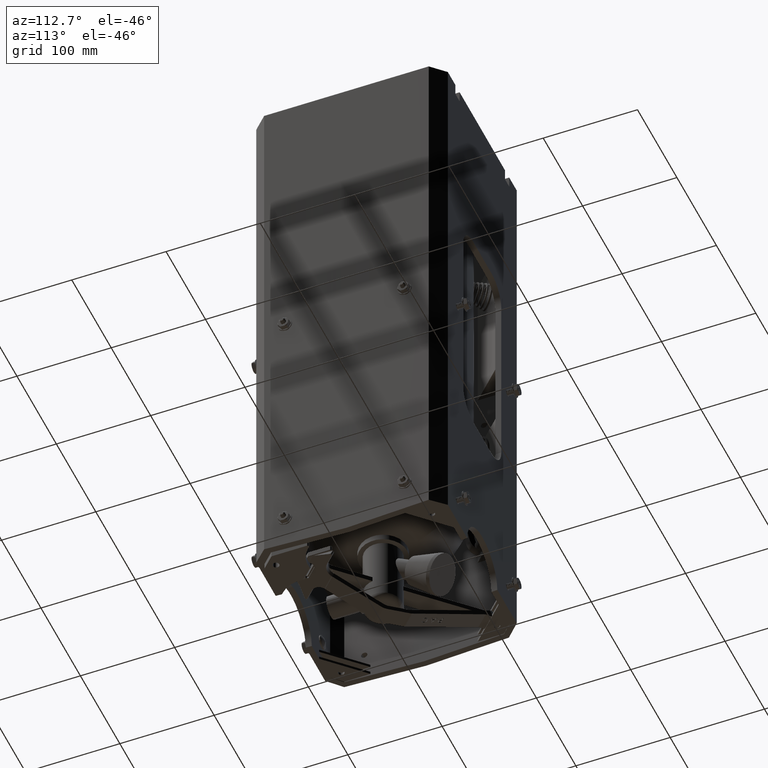
[diagram: clean part render]
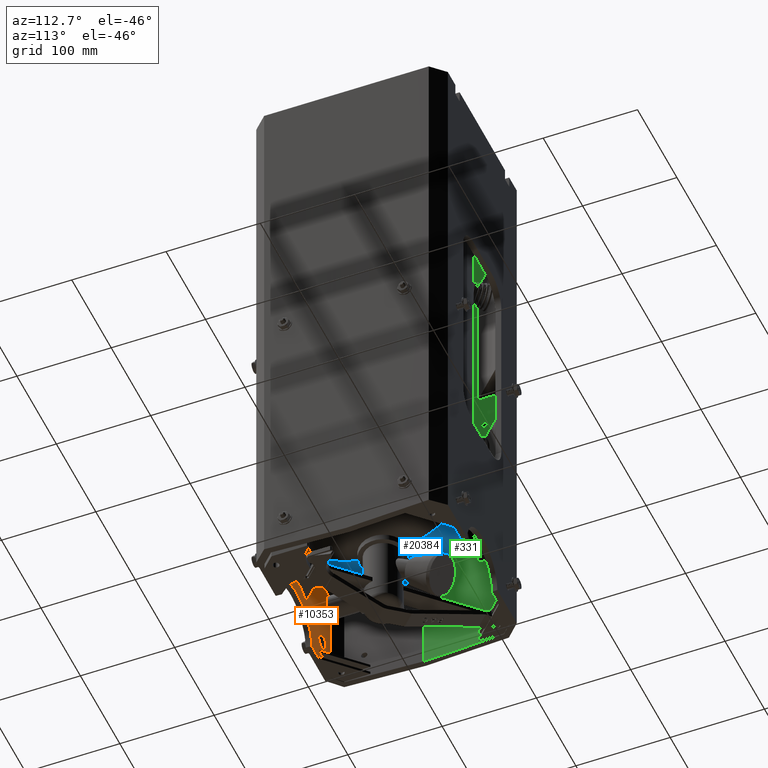
[diagram: same view with three faces highlighted in distinct colors, each labeled with its STEP entity id]
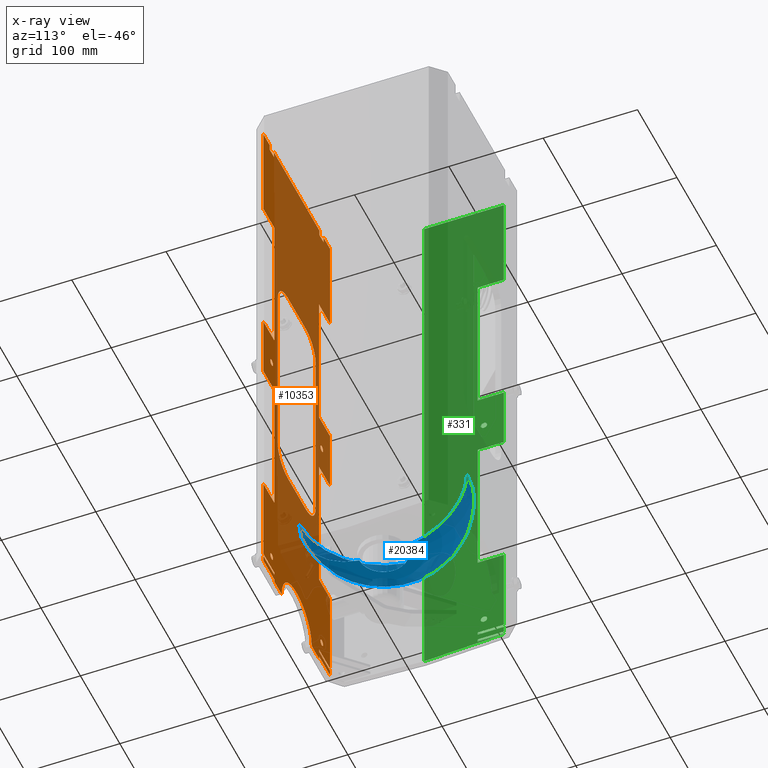
[diagram: x-ray of the same camera — body ghosted, the three highlighted faces saturated]
A machine part, auxiliary view with three faces highlighted in distinct colors.
The next image is the same camera in x-ray (body ghosted, the three faces saturated) — at least one of them is partly hidden behind the body in this view.
Their STEP definitions:

[orange] entity #10353 — the highlighted planar face has unit normal (0, 1, 0).
#27 = CARTESIAN_POINT ( 'NONE',  ( -3.333946609406732300, -3.750000000000011100, -7.533124999999999200 ) ) ;
#78 = DIRECTION ( 'NONE',  ( 4.440892098500599000E-016, 1.000000000000000000, 0.0000000000000000000 ) ) ;
#100 = CARTESIAN_POINT ( 'NONE',  ( -3.333946609406732300, -3.750000000000011100, 12.10500000000000000 ) ) ;
#123 = LINE ( 'NONE', #27, #24788 ) ;
#145 = CARTESIAN_POINT ( 'NONE',  ( -4.000000000000006200, -3.750000000000011100, 5.104999999999997800 ) ) ;
#148 = CARTESIAN_POINT ( 'NONE',  ( 2.240846073967598200, -3.750000000000008900, -11.79112499999999900 ) ) ;
#194 = DIRECTION ( 'NONE',  ( 0.0000000000000000000, 0.0000000000000000000, 1.000000000000000000 ) ) ;
#207 = CARTESIAN_POINT ( 'NONE',  ( -3.333946609406732300, -3.750000000000011100, -11.79112499999999900 ) ) ;
#210 = CARTESIAN_POINT ( 'NONE',  ( 2.240846073967598200, -3.750000000000008900, -1.283124999999999200 ) ) ;
#292 = LINE ( 'NONE', #22726, #1045 ) ;
#296 = VERTEX_POINT ( 'NONE', #26378 ) ;
#344 = VERTEX_POINT ( 'NONE', #19161 ) ;
#410 = CARTESIAN_POINT ( 'NONE',  ( -2.240846073967608800, -3.750000000000008900, -11.79112499999999900 ) ) ;
#455 = CARTESIAN_POINT ( 'NONE',  ( 2.263500000000002300, -3.750000000000008900, 11.85499999999999900 ) ) ;
#488 = VERTEX_POINT ( 'NONE', #4261 ) ;
#721 = DIRECTION ( 'NONE',  ( 0.0000000000000000000, -0.0000000000000000000, 1.000000000000000000 ) ) ;
#768 = VERTEX_POINT ( 'NONE', #14245 ) ;
#959 = VERTEX_POINT ( 'NONE', #19803 ) ;
#1045 = VECTOR ( 'NONE', #5640, 39.37007874015748100 ) ;
#1080 = CIRCLE ( 'NONE', #10067, 0.1329999999999999200 ) ;
#1216 = VECTOR ( 'NONE', #10604, 39.37007874015748100 ) ;
#1257 = LINE ( 'NONE', #6743, #13168 ) ;
#1462 = CARTESIAN_POINT ( 'NONE',  ( 3.333946609406724700, -3.750000000000006700, 12.10500000000000000 ) ) ;
#1553 = CARTESIAN_POINT ( 'NONE',  ( -2.240846073967608800, -3.750000000000008900, -11.90812500000000000 ) ) ;
#1576 = VERTEX_POINT ( 'NONE', #27826 ) ;
#1688 = CIRCLE ( 'NONE', #17645, 1.000000000000000200 ) ;
#1798 = ORIENTED_EDGE ( 'NONE', *, *, #1900, .T. ) ;
#1880 = DIRECTION ( 'NONE',  ( 2.048885995248202300E-016, 9.098881627026276300E-032, 1.000000000000000000 ) ) ;
#1900 = EDGE_CURVE ( 'NONE', #11920, #9295, #3415, .T. ) ;
#1964 = EDGE_CURVE ( 'NONE', #19873, #10796, #2673, .T. ) ;
#1969 = VECTOR ( 'NONE', #5294, 39.37007874015748100 ) ;
#2036 = EDGE_CURVE ( 'NONE', #15999, #13564, #7482, .T. ) ;
#2039 = ORIENTED_EDGE ( 'NONE', *, *, #21337, .F. ) ;
#2093 = EDGE_CURVE ( 'NONE', #18525, #3503, #13842, .T. ) ;
#2113 = CARTESIAN_POINT ( 'NONE',  ( -2.500000000000004900, -3.750000000000008900, -10.77000000000000100 ) ) ;
#2155 = ORIENTED_EDGE ( 'NONE', *, *, #2036, .T. ) ;
#2158 = VECTOR ( 'NONE', #9188, 39.37007874015748100 ) ;
#2354 = DIRECTION ( 'NONE',  ( 1.000000000000000000, 4.440892098500596600E-016, 0.0000000000000000000 ) ) ;
#2366 = VECTOR ( 'NONE', #16147, 39.37007874015748100 ) ;
#2460 = DIRECTION ( 'NONE',  ( 4.440892098500599000E-016, 1.000000000000000000, 0.0000000000000000000 ) ) ;
#2493 = LINE ( 'NONE', #17552, #20751 ) ;
#2612 = EDGE_LOOP ( 'NONE', ( #8525, #13953 ) ) ;
#2620 = EDGE_CURVE ( 'NONE', #21603, #344, #20890, .T. ) ;
#2628 = DIRECTION ( 'NONE',  ( 0.0000000000000000000, -0.0000000000000000000, 1.000000000000000000 ) ) ;
#2673 = LINE ( 'NONE', #7019, #8233 ) ;
#2924 = FACE_BOUND ( 'NONE', #17489, .T. ) ;
#3098 = ORIENTED_EDGE ( 'NONE', *, *, #6516, .F. ) ;
#3136 = DIRECTION ( 'NONE',  ( 4.440892098500599000E-016, 1.000000000000000000, 0.0000000000000000000 ) ) ;
#3182 = CARTESIAN_POINT ( 'NONE',  ( 2.240846073967598200, -3.750000000000008900, -11.90812500000000000 ) ) ;
#3285 = DIRECTION ( 'NONE',  ( 5.463695987328539300E-016, 2.426368433873675200E-031, -1.000000000000000000 ) ) ;
#3290 = VERTEX_POINT ( 'NONE', #14033 ) ;
#3292 = DIRECTION ( 'NONE',  ( -0.0000000000000000000, -0.0000000000000000000, 1.000000000000000000 ) ) ;
#3388 = ORIENTED_EDGE ( 'NONE', *, *, #9419, .F. ) ;
#3389 = CARTESIAN_POINT ( 'NONE',  ( 1.895000000000002200, -3.750000000000006700, 4.105000000000000400 ) ) ;
#3410 = CARTESIAN_POINT ( 'NONE',  ( 3.333946609406724700, -3.750000000000006700, -11.79112499999999900 ) ) ;
#3415 = LINE ( 'NONE', #18086, #8989 ) ;
#3503 = VERTEX_POINT ( 'NONE', #17426 ) ;
#3516 = AXIS2_PLACEMENT_3D ( 'NONE', #25298, #10967, #27711 ) ;
#3546 = CARTESIAN_POINT ( 'NONE',  ( 2.240846073967598200, -3.750000000000008900, -7.533124999999999200 ) ) ;
#3727 = CARTESIAN_POINT ( 'NONE',  ( -3.333946609406732300, -3.750000000000011100, -11.40812500000000400 ) ) ;
#3867 = EDGE_CURVE ( 'NONE', #3290, #28317, #21169, .T. ) ;
#3882 = ORIENTED_EDGE ( 'NONE', *, *, #24211, .T. ) ;
#4090 = CARTESIAN_POINT ( 'NONE',  ( 2.500000000000004000, -3.750000000000008900, -0.02000000000000033300 ) ) ;
#4114 = VECTOR ( 'NONE', #25039, 39.37007874015748100 ) ;
#4196 = CARTESIAN_POINT ( 'NONE',  ( 2.500000000000004400, -3.750000000000008900, -10.63700000000000000 ) ) ;
#4261 = CARTESIAN_POINT ( 'NONE',  ( -2.500000000000004400, -3.750000000000008900, -10.90300000000000000 ) ) ;
#4347 = VECTOR ( 'NONE', #28700, 39.37007874015748100 ) ;
#4376 = CARTESIAN_POINT ( 'NONE',  ( 2.263500000000002700, -3.750000000000008900, 11.60500000000000000 ) ) ;
#4496 = DIRECTION ( 'NONE',  ( 0.0000000000000000000, 0.0000000000000000000, 1.000000000000000000 ) ) ;
#4516 = DIRECTION ( 'NONE',  ( 1.000000000000000000, 4.440892098500596600E-016, 0.0000000000000000000 ) ) ;
#4622 = LINE ( 'NONE', #20877, #17290 ) ;
#4627 = CARTESIAN_POINT ( 'NONE',  ( -3.333946609406732300, -3.750000000000011500, 7.716875000000000800 ) ) ;
#4643 = DIRECTION ( 'NONE',  ( 4.440892098500599000E-016, 1.000000000000000000, 0.0000000000000000000 ) ) ;
#4761 = EDGE_CURVE ( 'NONE', #13798, #959, #8431, .T. ) ;
#4885 = CIRCLE ( 'NONE', #11754, 1.000000000000000200 ) ;
#4982 = VERTEX_POINT ( 'NONE', #18050 ) ;
#5016 = LINE ( 'NONE', #13231, #24074 ) ;
#5024 = EDGE_CURVE ( 'NONE', #18229, #16524, #15879, .T. ) ;
#5078 = LINE ( 'NONE', #100, #4347 ) ;
#5210 = ORIENTED_EDGE ( 'NONE', *, *, #29570, .T. ) ;
#5289 = EDGE_CURVE ( 'NONE', #23708, #11648, #27482, .T. ) ;
#5294 = DIRECTION ( 'NONE',  ( 1.000000000000000000, 4.440892098500596600E-016, 0.0000000000000000000 ) ) ;
#5463 = ORIENTED_EDGE ( 'NONE', *, *, #18894, .F. ) ;
#5501 = CARTESIAN_POINT ( 'NONE',  ( -3.333946609406732300, -3.750000000000011100, -11.40812500000000200 ) ) ;
#5640 = DIRECTION ( 'NONE',  ( 1.000000000000000000, 4.440892098500596600E-016, 0.0000000000000000000 ) ) ;
#5660 = CARTESIAN_POINT ( 'NONE',  ( 2.263500000000002300, -3.750000000000008900, 12.10500000000000000 ) ) ;
#5802 = DIRECTION ( 'NONE',  ( 1.000000000000000000, 4.440892098500596600E-016, 0.0000000000000000000 ) ) ;
#5887 = CARTESIAN_POINT ( 'NONE',  ( -2.500000000000004400, -3.750000000000008900, 0.1129999999999993800 ) ) ;
#5944 = CARTESIAN_POINT ( 'NONE',  ( -2.240846073967608800, -3.750000000000009300, 7.716875000000000800 ) ) ;
#5977 = EDGE_CURVE ( 'NONE', #30487, #16671, #20318, .T. ) ;
#6052 = ORIENTED_EDGE ( 'NONE', *, *, #27390, .F. ) ;
#6183 = PLANE ( 'NONE',  #3516 ) ;
#6361 = CARTESIAN_POINT ( 'NONE',  ( -4.000000000000010700, -3.750000000000011100, -11.90812500000000000 ) ) ;
#6425 = ORIENTED_EDGE ( 'NONE', *, *, #15903, .F. ) ;
#6480 = DIRECTION ( 'NONE',  ( 4.440892098500599000E-016, 1.000000000000000000, 0.0000000000000000000 ) ) ;
#6481 = DIRECTION ( 'NONE',  ( 0.0000000000000000000, 0.0000000000000000000, 1.000000000000000000 ) ) ;
#6516 = EDGE_CURVE ( 'NONE', #30647, #9044, #5016, .T. ) ;
#6567 = CARTESIAN_POINT ( 'NONE',  ( 2.500000000000004400, -3.750000000000008900, -0.1530000000000000500 ) ) ;
#6568 = DIRECTION ( 'NONE',  ( 4.440892098500599000E-016, 1.000000000000000000, 0.0000000000000000000 ) ) ;
#6596 = DIRECTION ( 'NONE',  ( 0.0000000000000000000, 0.0000000000000000000, -1.000000000000000000 ) ) ;
#6667 = LINE ( 'NONE', #5501, #24978 ) ;
#6694 = VECTOR ( 'NONE', #29269, 39.37007874015748100 ) ;
#6735 = EDGE_CURVE ( 'NONE', #19331, #4982, #20292, .T. ) ;
#6743 = CARTESIAN_POINT ( 'NONE',  ( -4.000000000000010700, -3.750000000000011100, -4.894999999999998700 ) ) ;
#6779 = CARTESIAN_POINT ( 'NONE',  ( -3.333946609406732300, -3.750000000000011500, 1.466875000000000800 ) ) ;
#7004 = AXIS2_PLACEMENT_3D ( 'NONE', #4090, #20762, #6481 ) ;
#7019 = CARTESIAN_POINT ( 'NONE',  ( 3.333946609406724700, -3.750000000000006700, 12.10500000000000000 ) ) ;
#7094 = ORIENTED_EDGE ( 'NONE', *, *, #12353, .F. ) ;
#7217 = LINE ( 'NONE', #4627, #19917 ) ;
#7323 = VERTEX_POINT ( 'NONE', #11101 ) ;
#7421 = EDGE_CURVE ( 'NONE', #18966, #25022, #1257, .T. ) ;
#7482 = LINE ( 'NONE', #11502, #13067 ) ;
#7552 = ORIENTED_EDGE ( 'NONE', *, *, #14139, .F. ) ;
#7579 = ORIENTED_EDGE ( 'NONE', *, *, #29607, .F. ) ;
#7582 = ORIENTED_EDGE ( 'NONE', *, *, #21522, .F. ) ;
#7751 = FACE_OUTER_BOUND ( 'NONE', #16873, .T. ) ;
#7782 = CARTESIAN_POINT ( 'NONE',  ( -2.240846073967608800, -3.750000000000008400, -11.40812500000000200 ) ) ;
#7858 = CARTESIAN_POINT ( 'NONE',  ( 2.240846073967598200, -3.750000000000008900, -11.79112499999999900 ) ) ;
#7908 = VERTEX_POINT ( 'NONE', #3410 ) ;
#8041 = CIRCLE ( 'NONE', #19220, 0.1329999999999997000 ) ;
#8141 = VERTEX_POINT ( 'NONE', #23092 ) ;
#8151 = CARTESIAN_POINT ( 'NONE',  ( -1.895000000000009100, -3.750000000000008900, -3.894999999999997800 ) ) ;
#8229 = VERTEX_POINT ( 'NONE', #18610 ) ;
#8233 = VECTOR ( 'NONE', #27506, 39.37007874015748100 ) ;
#8312 = CARTESIAN_POINT ( 'NONE',  ( -2.240846073967608800, -3.750000000000008900, -1.283124999999999200 ) ) ;
#8431 = LINE ( 'NONE', #22276, #24526 ) ;
#8477 = FACE_BOUND ( 'NONE', #30136, .T. ) ;
#8503 = ORIENTED_EDGE ( 'NONE', *, *, #17524, .F. ) ;
#8525 = ORIENTED_EDGE ( 'NONE', *, *, #27782, .F. ) ;
#8587 = EDGE_CURVE ( 'NONE', #11648, #28017, #13030, .T. ) ;
#8679 = VERTEX_POINT ( 'NONE', #29566 ) ;
#8843 = EDGE_CURVE ( 'NONE', #8229, #13113, #9309, .T. ) ;
#8960 = CARTESIAN_POINT ( 'NONE',  ( -1.895000000000005800, -3.750000000000008900, 12.10500000000000000 ) ) ;
#8989 = VECTOR ( 'NONE', #18188, 39.37007874015748100 ) ;
#9044 = VERTEX_POINT ( 'NONE', #30910 ) ;
#9059 = CARTESIAN_POINT ( 'NONE',  ( 3.333946609406724700, -3.750000000000006700, 11.85499999999999900 ) ) ;
#9072 = AXIS2_PLACEMENT_3D ( 'NONE', #10452, #27172, #12845 ) ;
#9112 = ORIENTED_EDGE ( 'NONE', *, *, #26189, .F. ) ;
#9145 = ORIENTED_EDGE ( 'NONE', *, *, #11028, .F. ) ;
#9188 = DIRECTION ( 'NONE',  ( 1.000000000000000000, 4.440892098500596600E-016, 0.0000000000000000000 ) ) ;
#9255 = ORIENTED_EDGE ( 'NONE', *, *, #15683, .T. ) ;
#9295 = VERTEX_POINT ( 'NONE', #19504 ) ;
#9309 = LINE ( 'NONE', #6361, #10049 ) ;
#9331 = DIRECTION ( 'NONE',  ( 4.440892098500599000E-016, 1.000000000000000000, 0.0000000000000000000 ) ) ;
#9390 = EDGE_CURVE ( 'NONE', #8679, #17498, #1080, .T. ) ;
#9419 = EDGE_CURVE ( 'NONE', #24800, #1576, #6667, .T. ) ;
#9535 = CARTESIAN_POINT ( 'NONE',  ( 0.8949999999999924700, -3.750000000000006700, -4.894999999999997800 ) ) ;
#9585 = CIRCLE ( 'NONE', #16177, 0.1329999999999999200 ) ;
#9632 = LINE ( 'NONE', #14811, #15960 ) ;
#9653 = CARTESIAN_POINT ( 'NONE',  ( -3.333946609406732300, -3.750000000000011100, 11.85499999999999900 ) ) ;
#9678 = DIRECTION ( 'NONE',  ( 1.000000000000000000, 4.440892098500596600E-016, 0.0000000000000000000 ) ) ;
#9760 = CARTESIAN_POINT ( 'NONE',  ( 2.240846073967598600, -3.750000000000008900, -11.40812500000000200 ) ) ;
#9768 = VECTOR ( 'NONE', #26356, 39.37007874015748100 ) ;
#9962 = ORIENTED_EDGE ( 'NONE', *, *, #30964, .T. ) ;
#10003 = ORIENTED_EDGE ( 'NONE', *, *, #21233, .T. ) ;
#10016 = CARTESIAN_POINT ( 'NONE',  ( -3.333946609406732300, -3.750000000000011100, -11.79112499999999900 ) ) ;
#10019 = DIRECTION ( 'NONE',  ( 0.0000000000000000000, 0.0000000000000000000, -1.000000000000000000 ) ) ;
#10049 = VECTOR ( 'NONE', #30181, 39.37007874015748100 ) ;
#10067 = AXIS2_PLACEMENT_3D ( 'NONE', #17383, #3136, #19815 ) ;
#10089 = CIRCLE ( 'NONE', #17550, 1.500000000000000900 ) ;
#10156 = ORIENTED_EDGE ( 'NONE', *, *, #27112, .F. ) ;
#10220 = VERTEX_POINT ( 'NONE', #15153 ) ;
#10353 = ADVANCED_FACE ( 'NONE', ( #20421, #8477, #2924, #26818, #14089, #7751 ), #6183, .T. ) ;
#10444 = LINE ( 'NONE', #22204, #23154 ) ;
#10452 = CARTESIAN_POINT ( 'NONE',  ( 2.500000000000003600, -3.750000000000008900, -10.77000000000000100 ) ) ;
#10498 = LINE ( 'NONE', #145, #9768 ) ;
#10512 = ORIENTED_EDGE ( 'NONE', *, *, #3867, .T. ) ;
#10521 = VERTEX_POINT ( 'NONE', #16198 ) ;
#10528 = VECTOR ( 'NONE', #28111, 39.37007874015748100 ) ;
#10604 = DIRECTION ( 'NONE',  ( 0.0000000000000000000, 0.0000000000000000000, -1.000000000000000000 ) ) ;
#10796 = VERTEX_POINT ( 'NONE', #26659 ) ;
#10819 = CARTESIAN_POINT ( 'NONE',  ( -3.333946609406732300, -3.750000000000011100, -1.283124999999999200 ) ) ;
#10912 = LINE ( 'NONE', #9760, #25136 ) ;
#10967 = DIRECTION ( 'NONE',  ( 4.440892098500599000E-016, 1.000000000000000000, 0.0000000000000000000 ) ) ;
#11028 = EDGE_CURVE ( 'NONE', #10220, #28317, #13292, .T. ) ;
#11101 = CARTESIAN_POINT ( 'NONE',  ( -2.240846073967608800, -3.750000000000008900, -7.533124999999999200 ) ) ;
#11159 = VECTOR ( 'NONE', #28274, 39.37007874015748100 ) ;
#11269 = VERTEX_POINT ( 'NONE', #6567 ) ;
#11310 = ORIENTED_EDGE ( 'NONE', *, *, #8843, .F. ) ;
#11380 = CARTESIAN_POINT ( 'NONE',  ( 2.240846073967597700, -3.750000000000009300, 1.466875000000000800 ) ) ;
#11413 = VECTOR ( 'NONE', #25085, 39.37007874015748100 ) ;
#11502 = CARTESIAN_POINT ( 'NONE',  ( -4.000000000000010700, -3.750000000000011100, 11.85499999999999900 ) ) ;
#11529 = EDGE_CURVE ( 'NONE', #24358, #24800, #5078, .T. ) ;
#11535 = DIRECTION ( 'NONE',  ( -1.000000000000000000, -4.440892098500596600E-016, 0.0000000000000000000 ) ) ;
#11608 = VECTOR ( 'NONE', #12747, 39.37007874015748100 ) ;
#11628 = CARTESIAN_POINT ( 'NONE',  ( -1.499942577025875900, -3.750000000000011100, -11.90812500000000000 ) ) ;
#11633 = ORIENTED_EDGE ( 'NONE', *, *, #13763, .T. ) ;
#11648 = VERTEX_POINT ( 'NONE', #410 ) ;
#11668 = DIRECTION ( 'NONE',  ( 0.0000000000000000000, 0.0000000000000000000, -1.000000000000000000 ) ) ;
#11725 = CARTESIAN_POINT ( 'NONE',  ( 2.240846073967598600, -3.750000000000008900, -11.40812500000000400 ) ) ;
#11754 = AXIS2_PLACEMENT_3D ( 'NONE', #14348, #78, #16735 ) ;
#11781 = CARTESIAN_POINT ( 'NONE',  ( -2.687500000000006700, -3.750000000000008900, 11.85499999999999900 ) ) ;
#11828 = VERTEX_POINT ( 'NONE', #3546 ) ;
#11920 = VERTEX_POINT ( 'NONE', #13207 ) ;
#11938 = CARTESIAN_POINT ( 'NONE',  ( 2.240846073967597700, -3.750000000000009300, 1.466875000000000800 ) ) ;
#12059 = DIRECTION ( 'NONE',  ( 4.440892098500599000E-016, 1.000000000000000000, 0.0000000000000000000 ) ) ;
#12076 = CARTESIAN_POINT ( 'NONE',  ( -4.000000000000010700, -3.750000000000011100, -11.90812500000000000 ) ) ;
#12163 = CARTESIAN_POINT ( 'NONE',  ( -2.500000000000004400, -3.750000000000008900, -10.63700000000000000 ) ) ;
#12256 = VERTEX_POINT ( 'NONE', #11938 ) ;
#12353 = EDGE_CURVE ( 'NONE', #18929, #19873, #10912, .T. ) ;
#12454 = CARTESIAN_POINT ( 'NONE',  ( -2.263500000000007200, -3.750000000000008900, 12.10500000000000000 ) ) ;
#12519 = CARTESIAN_POINT ( 'NONE',  ( -2.240846073967608800, -3.750000000000008400, -11.40812500000000200 ) ) ;
#12586 = CIRCLE ( 'NONE', #17369, 0.1329999999999997300 ) ;
#12707 = VECTOR ( 'NONE', #19015, 39.37007874015748100 ) ;
#12716 = DIRECTION ( 'NONE',  ( 4.440892098500599000E-016, 1.000000000000000000, 0.0000000000000000000 ) ) ;
#12747 = DIRECTION ( 'NONE',  ( 1.000000000000000000, 4.440892098500596600E-016, 0.0000000000000000000 ) ) ;
#12779 = DIRECTION ( 'NONE',  ( 0.0000000000000000000, 0.0000000000000000000, -1.000000000000000000 ) ) ;
#12784 = EDGE_CURVE ( 'NONE', #12256, #16524, #16866, .T. ) ;
#12845 = DIRECTION ( 'NONE',  ( 0.0000000000000000000, 0.0000000000000000000, 1.000000000000000000 ) ) ;
#13030 = LINE ( 'NONE', #12519, #6694 ) ;
#13067 = VECTOR ( 'NONE', #2354, 39.37007874015748100 ) ;
#13113 = VERTEX_POINT ( 'NONE', #3182 ) ;
#13168 = VECTOR ( 'NONE', #11535, 39.37007874015748100 ) ;
#13207 = CARTESIAN_POINT ( 'NONE',  ( 2.240846073967598600, -3.750000000000008900, -11.52512499999999900 ) ) ;
#13231 = CARTESIAN_POINT ( 'NONE',  ( 2.240846073967597700, -3.750000000000009300, 7.716875000000000800 ) ) ;
#13292 = LINE ( 'NONE', #5944, #26029 ) ;
#13379 = CARTESIAN_POINT ( 'NONE',  ( 3.333946609406724700, -3.750000000000007100, 1.466875000000000800 ) ) ;
#13455 = EDGE_CURVE ( 'NONE', #26520, #21782, #10498, .T. ) ;
#13564 = VERTEX_POINT ( 'NONE', #455 ) ;
#13724 = ORIENTED_EDGE ( 'NONE', *, *, #5977, .F. ) ;
#13745 = EDGE_CURVE ( 'NONE', #11828, #10796, #24334, .T. ) ;
#13750 = CARTESIAN_POINT ( 'NONE',  ( 2.240846073967598600, -3.750000000000008900, -11.40812500000000200 ) ) ;
#13763 = EDGE_CURVE ( 'NONE', #13564, #768, #30698, .T. ) ;
#13767 = AXIS2_PLACEMENT_3D ( 'NONE', #19566, #2460, #16695 ) ;
#13774 = VERTEX_POINT ( 'NONE', #24785 ) ;
#13798 = VERTEX_POINT ( 'NONE', #3389 ) ;
#13842 = CIRCLE ( 'NONE', #13767, 0.1329999999999997000 ) ;
#13953 = ORIENTED_EDGE ( 'NONE', *, *, #2093, .F. ) ;
#14033 = CARTESIAN_POINT ( 'NONE',  ( -3.333946609406732300, -3.750000000000011100, 1.466875000000001900 ) ) ;
#14089 = FACE_BOUND ( 'NONE', #28323, .T. ) ;
#14139 = EDGE_CURVE ( 'NONE', #22069, #488, #29550, .T. ) ;
#14245 = CARTESIAN_POINT ( 'NONE',  ( 2.263500000000002700, -3.750000000000008900, 11.60500000000000000 ) ) ;
#14270 = CARTESIAN_POINT ( 'NONE',  ( -3.333946609406732300, -3.750000000000011100, -7.533124999999999200 ) ) ;
#14283 = LINE ( 'NONE', #25779, #15759 ) ;
#14348 = CARTESIAN_POINT ( 'NONE',  ( 0.8949999999999993500, -3.750000000000008900, 4.105000000000000400 ) ) ;
#14351 = CARTESIAN_POINT ( 'NONE',  ( -2.263500000000007200, -3.750000000000008900, 11.85499999999999900 ) ) ;
#14462 = DIRECTION ( 'NONE',  ( 4.440892098500599000E-016, 1.000000000000000000, 0.0000000000000000000 ) ) ;
#14479 = ORIENTED_EDGE ( 'NONE', *, *, #18364, .F. ) ;
#14521 = VECTOR ( 'NONE', #9678, 39.37007874015748100 ) ;
#14580 = CARTESIAN_POINT ( 'NONE',  ( -2.240846073967609700, -3.750000000000008900, 1.466875000000001300 ) ) ;
#14631 = LINE ( 'NONE', #26714, #1969 ) ;
#14642 = LINE ( 'NONE', #29536, #20985 ) ;
#14753 = VECTOR ( 'NONE', #26101, 39.37007874015748100 ) ;
#14811 = CARTESIAN_POINT ( 'NONE',  ( 2.240846073967598200, -3.750000000000008900, -1.283124999999999200 ) ) ;
#14951 = AXIS2_PLACEMENT_3D ( 'NONE', #26387, #12059, #28780 ) ;
#15016 = VERTEX_POINT ( 'NONE', #9059 ) ;
#15017 = EDGE_CURVE ( 'NONE', #25425, #13113, #25448, .T. ) ;
#15074 = DIRECTION ( 'NONE',  ( 0.0000000000000000000, 0.0000000000000000000, -1.000000000000000000 ) ) ;
#15153 = CARTESIAN_POINT ( 'NONE',  ( -2.240846073967609700, -3.750000000000008900, 7.716875000000000800 ) ) ;
#15162 = EDGE_CURVE ( 'NONE', #21782, #13798, #4885, .T. ) ;
#15185 = EDGE_CURVE ( 'NONE', #25022, #19331, #16812, .T. ) ;
#15430 = LINE ( 'NONE', #12454, #27418 ) ;
#15525 = EDGE_CURVE ( 'NONE', #25071, #8229, #10089, .T. ) ;
#15683 = EDGE_CURVE ( 'NONE', #23708, #296, #26921, .T. ) ;
#15741 = DIRECTION ( 'NONE',  ( -0.0000000000000000000, -0.0000000000000000000, 1.000000000000000000 ) ) ;
#15759 = VECTOR ( 'NONE', #28175, 39.37007874015748100 ) ;
#15879 = LINE ( 'NONE', #1462, #25630 ) ;
#15903 = EDGE_CURVE ( 'NONE', #7908, #9295, #10444, .T. ) ;
#15960 = VECTOR ( 'NONE', #10019, 39.37007874015748100 ) ;
#15999 = VERTEX_POINT ( 'NONE', #14351 ) ;
#16147 = DIRECTION ( 'NONE',  ( 0.0000000000000000000, 0.0000000000000000000, -1.000000000000000000 ) ) ;
#16151 = CARTESIAN_POINT ( 'NONE',  ( 2.240846073967597700, -3.750000000000009300, 7.716875000000000800 ) ) ;
#16177 = AXIS2_PLACEMENT_3D ( 'NONE', #2113, #18793, #4496 ) ;
#16198 = CARTESIAN_POINT ( 'NONE',  ( 2.687500000000002200, -3.750000000000008900, 11.60500000000000000 ) ) ;
#16244 = VECTOR ( 'NONE', #15074, 39.37007874015748100 ) ;
#16524 = VERTEX_POINT ( 'NONE', #13379 ) ;
#16671 = VERTEX_POINT ( 'NONE', #21008 ) ;
#16695 = DIRECTION ( 'NONE',  ( 0.0000000000000000000, 0.0000000000000000000, 1.000000000000000000 ) ) ;
#16735 = DIRECTION ( 'NONE',  ( 0.0000000000000000000, 0.0000000000000000000, 1.000000000000000000 ) ) ;
#16812 = CIRCLE ( 'NONE', #14951, 1.000000000000000200 ) ;
#16866 = LINE ( 'NONE', #11380, #10528 ) ;
#16873 = EDGE_LOOP ( 'NONE', ( #10156, #3098, #30802, #17145, #28525, #27134, #20058, #18253, #26861, #7094, #28427, #1798, #6425, #18269, #28066, #11310, #20599, #19976, #23462, #23324, #9255, #9962, #14479, #3388, #27912, #20969, #2039, #13724, #7582, #10512, #9145, #21263, #19587, #23819, #30232, #10003, #5210, #2155, #11633, #3882, #27195, #22133 ) ) ;
#17145 = ORIENTED_EDGE ( 'NONE', *, *, #12784, .T. ) ;
#17290 = VECTOR ( 'NONE', #6596, 39.37007874015748100 ) ;
#17369 = AXIS2_PLACEMENT_3D ( 'NONE', #28799, #14462, #194 ) ;
#17383 = CARTESIAN_POINT ( 'NONE',  ( 2.500000000000003600, -3.750000000000008900, -10.77000000000000100 ) ) ;
#17426 = CARTESIAN_POINT ( 'NONE',  ( -2.500000000000004400, -3.750000000000008900, -0.1530000000000000500 ) ) ;
#17434 = CARTESIAN_POINT ( 'NONE',  ( 2.240846073967598200, -3.750000000000008900, -7.533124999999999200 ) ) ;
#17489 = EDGE_LOOP ( 'NONE', ( #6052, #9112 ) ) ;
#17498 = VERTEX_POINT ( 'NONE', #4196 ) ;
#17524 = EDGE_CURVE ( 'NONE', #488, #22069, #9585, .T. ) ;
#17550 = AXIS2_PLACEMENT_3D ( 'NONE', #20850, #6568, #23281 ) ;
#17552 = CARTESIAN_POINT ( 'NONE',  ( 3.333946609406724700, -3.750000000000006700, 12.10500000000000000 ) ) ;
#17600 = DIRECTION ( 'NONE',  ( 1.000000000000000000, 4.440892098500596600E-016, 0.0000000000000000000 ) ) ;
#17645 = AXIS2_PLACEMENT_3D ( 'NONE', #23647, #9331, #26038 ) ;
#17712 = VERTEX_POINT ( 'NONE', #210 ) ;
#17990 = VECTOR ( 'NONE', #24924, 39.37007874015748100 ) ;
#18050 = CARTESIAN_POINT ( 'NONE',  ( -1.895000000000007600, -3.750000000000006700, 4.105000000000000400 ) ) ;
#18086 = CARTESIAN_POINT ( 'NONE',  ( 2.240846073967598200, -3.750000000000008900, -11.52512499999999900 ) ) ;
#18188 = DIRECTION ( 'NONE',  ( 1.000000000000000000, 4.440892098500596600E-016, 0.0000000000000000000 ) ) ;
#18229 = VERTEX_POINT ( 'NONE', #21760 ) ;
#18253 = ORIENTED_EDGE ( 'NONE', *, *, #13745, .T. ) ;
#18269 = ORIENTED_EDGE ( 'NONE', *, *, #22778, .F. ) ;
#18274 = LINE ( 'NONE', #4376, #11159 ) ;
#18364 = EDGE_CURVE ( 'NONE', #1576, #27246, #29726, .T. ) ;
#18525 = VERTEX_POINT ( 'NONE', #5887 ) ;
#18610 = CARTESIAN_POINT ( 'NONE',  ( 1.499942577025863900, -3.750000000000006700, -11.90812500000000000 ) ) ;
#18642 = ORIENTED_EDGE ( 'NONE', *, *, #7421, .F. ) ;
#18678 = VECTOR ( 'NONE', #26358, 39.37007874015748100 ) ;
#18787 = EDGE_LOOP ( 'NONE', ( #28822, #7579 ) ) ;
#18793 = DIRECTION ( 'NONE',  ( 4.440892098500599000E-016, 1.000000000000000000, 0.0000000000000000000 ) ) ;
#18894 = EDGE_CURVE ( 'NONE', #4982, #26520, #1688, .T. ) ;
#18927 = CARTESIAN_POINT ( 'NONE',  ( 0.8949999999999995700, -3.750000000000008900, -3.894999999999997800 ) ) ;
#18929 = VERTEX_POINT ( 'NONE', #11725 ) ;
#18936 = EDGE_CURVE ( 'NONE', #959, #18966, #26349, .T. ) ;
#18966 = VERTEX_POINT ( 'NONE', #9535 ) ;
#19015 = DIRECTION ( 'NONE',  ( 1.000000000000000000, 4.440892098500596600E-016, 0.0000000000000000000 ) ) ;
#19080 = VECTOR ( 'NONE', #28167, 39.37007874015748100 ) ;
#19161 = CARTESIAN_POINT ( 'NONE',  ( -3.333946609406732300, -3.750000000000011100, 7.716875000000000800 ) ) ;
#19192 = CARTESIAN_POINT ( 'NONE',  ( 3.333946609406724700, -3.750000000000006700, -11.40812500000000400 ) ) ;
#19220 = AXIS2_PLACEMENT_3D ( 'NONE', #27055, #12716, #29440 ) ;
#19331 = VERTEX_POINT ( 'NONE', #8151 ) ;
#19504 = CARTESIAN_POINT ( 'NONE',  ( 3.333946609406724700, -3.750000000000006700, -11.52512499999999900 ) ) ;
#19508 = LINE ( 'NONE', #8312, #1216 ) ;
#19566 = CARTESIAN_POINT ( 'NONE',  ( -2.500000000000004900, -3.750000000000008900, -0.02000000000000033300 ) ) ;
#19587 = ORIENTED_EDGE ( 'NONE', *, *, #2620, .F. ) ;
#19803 = CARTESIAN_POINT ( 'NONE',  ( 1.895000000000002700, -3.750000000000006700, -3.894999999999990700 ) ) ;
#19815 = DIRECTION ( 'NONE',  ( 0.0000000000000000000, 0.0000000000000000000, 1.000000000000000000 ) ) ;
#19873 = VERTEX_POINT ( 'NONE', #19192 ) ;
#19917 = VECTOR ( 'NONE', #4516, 39.37007874015748100 ) ;
#19976 = ORIENTED_EDGE ( 'NONE', *, *, #24401, .F. ) ;
#20058 = ORIENTED_EDGE ( 'NONE', *, *, #25604, .T. ) ;
#20096 = CARTESIAN_POINT ( 'NONE',  ( -3.333946609406732300, -3.750000000000011100, -1.283124999999999200 ) ) ;
#20239 = DIRECTION ( 'NONE',  ( 0.0000000000000000000, 0.0000000000000000000, -1.000000000000000000 ) ) ;
#20255 = CARTESIAN_POINT ( 'NONE',  ( -2.240846073967608800, -3.750000000000008900, -11.52512499999999900 ) ) ;
#20292 = LINE ( 'NONE', #8960, #25930 ) ;
#20318 = LINE ( 'NONE', #20096, #27458 ) ;
#20421 = FACE_BOUND ( 'NONE', #18787, .T. ) ;
#20599 = ORIENTED_EDGE ( 'NONE', *, *, #15525, .F. ) ;
#20751 = VECTOR ( 'NONE', #3292, 39.37007874015748100 ) ;
#20756 = CARTESIAN_POINT ( 'NONE',  ( -2.500000000000004900, -3.750000000000008900, -10.77000000000000100 ) ) ;
#20762 = DIRECTION ( 'NONE',  ( 4.440892098500599000E-016, 1.000000000000000000, 0.0000000000000000000 ) ) ;
#20832 = EDGE_CURVE ( 'NONE', #18929, #11920, #21382, .T. ) ;
#20833 = AXIS2_PLACEMENT_3D ( 'NONE', #18927, #4643, #21324 ) ;
#20850 = CARTESIAN_POINT ( 'NONE',  ( -5.463695987328526400E-015, -3.750000000000008900, -11.89500000000000000 ) ) ;
#20862 = EDGE_CURVE ( 'NONE', #10521, #13774, #14283, .T. ) ;
#20877 = CARTESIAN_POINT ( 'NONE',  ( 2.240846073967597700, -3.750000000000009300, 7.716875000000000800 ) ) ;
#20890 = LINE ( 'NONE', #22614, #4114 ) ;
#20969 = ORIENTED_EDGE ( 'NONE', *, *, #29995, .T. ) ;
#20985 = VECTOR ( 'NONE', #17600, 39.37007874015748100 ) ;
#21008 = CARTESIAN_POINT ( 'NONE',  ( -2.240846073967608800, -3.750000000000008900, -1.283124999999999200 ) ) ;
#21046 = CIRCLE ( 'NONE', #9072, 0.1329999999999999200 ) ;
#21123 = CIRCLE ( 'NONE', #7004, 0.1329999999999997300 ) ;
#21154 = CARTESIAN_POINT ( 'NONE',  ( -2.687500000000006700, -3.750000000000008900, 12.10500000000000000 ) ) ;
#21169 = LINE ( 'NONE', #6779, #2158 ) ;
#21233 = EDGE_CURVE ( 'NONE', #8141, #27683, #14642, .T. ) ;
#21263 = ORIENTED_EDGE ( 'NONE', *, *, #29938, .F. ) ;
#21282 = CARTESIAN_POINT ( 'NONE',  ( -3.333946609406732300, -3.750000000000011100, -11.79112499999999900 ) ) ;
#21324 = DIRECTION ( 'NONE',  ( 0.0000000000000000000, 0.0000000000000000000, 1.000000000000000000 ) ) ;
#21337 = EDGE_CURVE ( 'NONE', #16671, #7323, #19508, .T. ) ;
#21382 = LINE ( 'NONE', #13750, #2366 ) ;
#21492 = DIRECTION ( 'NONE',  ( 1.000000000000000000, 4.440892098500596600E-016, 0.0000000000000000000 ) ) ;
#21522 = EDGE_CURVE ( 'NONE', #3290, #30487, #29237, .T. ) ;
#21603 = VERTEX_POINT ( 'NONE', #9653 ) ;
#21616 = LINE ( 'NONE', #12076, #14521 ) ;
#21760 = CARTESIAN_POINT ( 'NONE',  ( 3.333946609406724700, -3.750000000000006700, -1.283124999999999200 ) ) ;
#21782 = VERTEX_POINT ( 'NONE', #22056 ) ;
#22056 = CARTESIAN_POINT ( 'NONE',  ( 0.8949999999999994600, -3.750000000000006700, 5.105000000000001300 ) ) ;
#22069 = VERTEX_POINT ( 'NONE', #12163 ) ;
#22133 = ORIENTED_EDGE ( 'NONE', *, *, #23535, .T. ) ;
#22155 = DIRECTION ( 'NONE',  ( 5.463695987328539300E-016, 2.426368433873675200E-031, 1.000000000000000000 ) ) ;
#22199 = DIRECTION ( 'NONE',  ( 1.000000000000000000, 9.439239286331437100E-016, 0.0000000000000000000 ) ) ;
#22204 = CARTESIAN_POINT ( 'NONE',  ( 3.333946609406724700, -3.750000000000006700, -11.79112499999999900 ) ) ;
#22276 = CARTESIAN_POINT ( 'NONE',  ( 1.895000000000002000, -3.750000000000008900, 12.10500000000000000 ) ) ;
#22614 = CARTESIAN_POINT ( 'NONE',  ( -3.333946609406732300, -3.750000000000011100, 12.10500000000000000 ) ) ;
#22646 = CARTESIAN_POINT ( 'NONE',  ( 2.240846073967598200, -3.750000000000008900, -1.283124999999999200 ) ) ;
#22726 = CARTESIAN_POINT ( 'NONE',  ( -4.000000000000010700, -3.750000000000011100, 11.85499999999999900 ) ) ;
#22778 = EDGE_CURVE ( 'NONE', #25425, #7908, #25028, .T. ) ;
#22816 = VERTEX_POINT ( 'NONE', #28866 ) ;
#23092 = CARTESIAN_POINT ( 'NONE',  ( -2.687500000000006700, -3.750000000000008900, 11.60500000000000000 ) ) ;
#23138 = VECTOR ( 'NONE', #11668, 39.37007874015748100 ) ;
#23154 = VECTOR ( 'NONE', #721, 39.37007874015748100 ) ;
#23181 = DIRECTION ( 'NONE',  ( 0.0000000000000000000, 0.0000000000000000000, 1.000000000000000000 ) ) ;
#23281 = DIRECTION ( 'NONE',  ( 0.0000000000000000000, 0.0000000000000000000, 1.000000000000000000 ) ) ;
#23324 = ORIENTED_EDGE ( 'NONE', *, *, #5289, .F. ) ;
#23351 = CARTESIAN_POINT ( 'NONE',  ( 2.240846073967598600, -3.750000000000008900, -11.40812500000000200 ) ) ;
#23462 = ORIENTED_EDGE ( 'NONE', *, *, #8587, .F. ) ;
#23535 = EDGE_CURVE ( 'NONE', #13774, #15016, #25430, .T. ) ;
#23647 = CARTESIAN_POINT ( 'NONE',  ( -0.8950000000000034600, -3.750000000000008900, 4.105000000000000400 ) ) ;
#23708 = VERTEX_POINT ( 'NONE', #10016 ) ;
#23819 = ORIENTED_EDGE ( 'NONE', *, *, #25786, .T. ) ;
#23936 = CARTESIAN_POINT ( 'NONE',  ( -4.000000000000010700, -3.750000000000011100, 11.85499999999999900 ) ) ;
#24074 = VECTOR ( 'NONE', #27553, 39.37007874015748100 ) ;
#24137 = LINE ( 'NONE', #22646, #11413 ) ;
#24211 = EDGE_CURVE ( 'NONE', #768, #10521, #18274, .T. ) ;
#24226 = EDGE_CURVE ( 'NONE', #28106, #8141, #29503, .T. ) ;
#24267 = ORIENTED_EDGE ( 'NONE', *, *, #6735, .F. ) ;
#24334 = LINE ( 'NONE', #17434, #11608 ) ;
#24358 = VERTEX_POINT ( 'NONE', #14270 ) ;
#24401 = EDGE_CURVE ( 'NONE', #28017, #25071, #21616, .T. ) ;
#24526 = VECTOR ( 'NONE', #12779, 39.37007874015748100 ) ;
#24785 = CARTESIAN_POINT ( 'NONE',  ( 2.687500000000002200, -3.750000000000008900, 11.85499999999999900 ) ) ;
#24788 = VECTOR ( 'NONE', #21492, 39.37007874015748100 ) ;
#24800 = VERTEX_POINT ( 'NONE', #3727 ) ;
#24924 = DIRECTION ( 'NONE',  ( -0.0000000000000000000, 0.0000000000000000000, -1.000000000000000000 ) ) ;
#24978 = VECTOR ( 'NONE', #22199, 39.37007874015748100 ) ;
#25022 = VERTEX_POINT ( 'NONE', #25950 ) ;
#25028 = LINE ( 'NONE', #148, #18678 ) ;
#25039 = DIRECTION ( 'NONE',  ( -0.0000000000000000000, 0.0000000000000000000, -1.000000000000000000 ) ) ;
#25071 = VERTEX_POINT ( 'NONE', #11628 ) ;
#25085 = DIRECTION ( 'NONE',  ( 1.000000000000000000, 4.440892098500596600E-016, 0.0000000000000000000 ) ) ;
#25136 = VECTOR ( 'NONE', #26471, 39.37007874015748100 ) ;
#25298 = CARTESIAN_POINT ( 'NONE',  ( -4.000000000000010700, -3.750000000000011100, 12.10500000000000000 ) ) ;
#25333 = ORIENTED_EDGE ( 'NONE', *, *, #13455, .F. ) ;
#25347 = AXIS2_PLACEMENT_3D ( 'NONE', #20756, #6480, #23181 ) ;
#25425 = VERTEX_POINT ( 'NONE', #7858 ) ;
#25430 = LINE ( 'NONE', #23936, #12707 ) ;
#25448 = LINE ( 'NONE', #23351, #19080 ) ;
#25604 = EDGE_CURVE ( 'NONE', #17712, #11828, #9632, .T. ) ;
#25630 = VECTOR ( 'NONE', #15741, 39.37007874015748100 ) ;
#25779 = CARTESIAN_POINT ( 'NONE',  ( 2.687500000000002200, -3.750000000000008900, 12.10500000000000000 ) ) ;
#25786 = EDGE_CURVE ( 'NONE', #21603, #28106, #292, .T. ) ;
#25826 = ORIENTED_EDGE ( 'NONE', *, *, #4761, .F. ) ;
#25930 = VECTOR ( 'NONE', #1880, 39.37007874015748100 ) ;
#25950 = CARTESIAN_POINT ( 'NONE',  ( -0.8950000000000045700, -3.750000000000006700, -4.894999999999997800 ) ) ;
#26029 = VECTOR ( 'NONE', #20239, 39.37007874015748100 ) ;
#26038 = DIRECTION ( 'NONE',  ( 0.0000000000000000000, 0.0000000000000000000, 1.000000000000000000 ) ) ;
#26101 = DIRECTION ( 'NONE',  ( 1.000000000000000000, 4.440892098500596600E-016, 0.0000000000000000000 ) ) ;
#26164 = VECTOR ( 'NONE', #2628, 39.37007874015748100 ) ;
#26189 = EDGE_CURVE ( 'NONE', #22816, #11269, #12586, .T. ) ;
#26349 = CIRCLE ( 'NONE', #20833, 1.000000000000000200 ) ;
#26356 = DIRECTION ( 'NONE',  ( 1.000000000000000000, 4.440892098500596600E-016, 6.104688253998341000E-016 ) ) ;
#26358 = DIRECTION ( 'NONE',  ( 1.000000000000000000, 4.440892098500596600E-016, 0.0000000000000000000 ) ) ;
#26378 = CARTESIAN_POINT ( 'NONE',  ( -3.333946609406732300, -3.750000000000011100, -11.52512499999999900 ) ) ;
#26387 = CARTESIAN_POINT ( 'NONE',  ( -0.8950000000000050100, -3.750000000000008900, -3.894999999999997800 ) ) ;
#26471 = DIRECTION ( 'NONE',  ( 1.000000000000000000, 4.440892098500596600E-016, 0.0000000000000000000 ) ) ;
#26520 = VERTEX_POINT ( 'NONE', #29929 ) ;
#26659 = CARTESIAN_POINT ( 'NONE',  ( 3.333946609406724700, -3.750000000000006700, -7.533124999999999200 ) ) ;
#26714 = CARTESIAN_POINT ( 'NONE',  ( -3.333946609406732300, -3.750000000000011100, -11.52512499999999900 ) ) ;
#26818 = FACE_BOUND ( 'NONE', #2612, .T. ) ;
#26861 = ORIENTED_EDGE ( 'NONE', *, *, #1964, .F. ) ;
#26921 = LINE ( 'NONE', #207, #26164 ) ;
#27055 = CARTESIAN_POINT ( 'NONE',  ( -2.500000000000004900, -3.750000000000008900, -0.02000000000000033300 ) ) ;
#27112 = EDGE_CURVE ( 'NONE', #9044, #15016, #2493, .T. ) ;
#27134 = ORIENTED_EDGE ( 'NONE', *, *, #27240, .F. ) ;
#27172 = DIRECTION ( 'NONE',  ( 4.440892098500599000E-016, 1.000000000000000000, 0.0000000000000000000 ) ) ;
#27173 = ORIENTED_EDGE ( 'NONE', *, *, #18936, .F. ) ;
#27195 = ORIENTED_EDGE ( 'NONE', *, *, #20862, .T. ) ;
#27240 = EDGE_CURVE ( 'NONE', #17712, #18229, #24137, .T. ) ;
#27246 = VERTEX_POINT ( 'NONE', #20255 ) ;
#27390 = EDGE_CURVE ( 'NONE', #11269, #22816, #21123, .T. ) ;
#27418 = VECTOR ( 'NONE', #22155, 39.37007874015748100 ) ;
#27458 = VECTOR ( 'NONE', #5802, 39.37007874015748100 ) ;
#27482 = LINE ( 'NONE', #21282, #14753 ) ;
#27506 = DIRECTION ( 'NONE',  ( -0.0000000000000000000, -0.0000000000000000000, 1.000000000000000000 ) ) ;
#27553 = DIRECTION ( 'NONE',  ( 1.000000000000000000, 4.440892098500596600E-016, 0.0000000000000000000 ) ) ;
#27620 = ORIENTED_EDGE ( 'NONE', *, *, #15185, .F. ) ;
#27683 = VERTEX_POINT ( 'NONE', #28937 ) ;
#27711 = DIRECTION ( 'NONE',  ( 0.0000000000000000000, -0.0000000000000000000, 1.000000000000000000 ) ) ;
#27782 = EDGE_CURVE ( 'NONE', #3503, #18525, #8041, .T. ) ;
#27826 = CARTESIAN_POINT ( 'NONE',  ( -2.240846073967608800, -3.750000000000008900, -11.40812500000000400 ) ) ;
#27912 = ORIENTED_EDGE ( 'NONE', *, *, #11529, .F. ) ;
#28017 = VERTEX_POINT ( 'NONE', #1553 ) ;
#28066 = ORIENTED_EDGE ( 'NONE', *, *, #15017, .T. ) ;
#28106 = VERTEX_POINT ( 'NONE', #11781 ) ;
#28111 = DIRECTION ( 'NONE',  ( 1.000000000000000000, 4.440892098500596600E-016, 0.0000000000000000000 ) ) ;
#28167 = DIRECTION ( 'NONE',  ( 0.0000000000000000000, 0.0000000000000000000, -1.000000000000000000 ) ) ;
#28175 = DIRECTION ( 'NONE',  ( 0.0000000000000000000, -0.0000000000000000000, 1.000000000000000000 ) ) ;
#28274 = DIRECTION ( 'NONE',  ( 1.000000000000000000, 4.440892098500596600E-016, 0.0000000000000000000 ) ) ;
#28317 = VERTEX_POINT ( 'NONE', #14580 ) ;
#28323 = EDGE_LOOP ( 'NONE', ( #5463, #24267, #27620, #18642, #27173, #25826, #29265, #25333 ) ) ;
#28427 = ORIENTED_EDGE ( 'NONE', *, *, #20832, .T. ) ;
#28525 = ORIENTED_EDGE ( 'NONE', *, *, #5024, .F. ) ;
#28572 = CARTESIAN_POINT ( 'NONE',  ( -3.333946609406732300, -3.750000000000011100, 12.10500000000000000 ) ) ;
#28700 = DIRECTION ( 'NONE',  ( -0.0000000000000000000, 0.0000000000000000000, -1.000000000000000000 ) ) ;
#28780 = DIRECTION ( 'NONE',  ( 0.0000000000000000000, 0.0000000000000000000, 1.000000000000000000 ) ) ;
#28799 = CARTESIAN_POINT ( 'NONE',  ( 2.500000000000004000, -3.750000000000008900, -0.02000000000000033300 ) ) ;
#28822 = ORIENTED_EDGE ( 'NONE', *, *, #9390, .F. ) ;
#28866 = CARTESIAN_POINT ( 'NONE',  ( 2.500000000000004400, -3.750000000000008900, 0.1129999999999993900 ) ) ;
#28937 = CARTESIAN_POINT ( 'NONE',  ( -2.263500000000007200, -3.750000000000008900, 11.60500000000000000 ) ) ;
#29237 = LINE ( 'NONE', #28572, #17990 ) ;
#29265 = ORIENTED_EDGE ( 'NONE', *, *, #15162, .F. ) ;
#29269 = DIRECTION ( 'NONE',  ( 0.0000000000000000000, 0.0000000000000000000, -1.000000000000000000 ) ) ;
#29440 = DIRECTION ( 'NONE',  ( 0.0000000000000000000, 0.0000000000000000000, 1.000000000000000000 ) ) ;
#29503 = LINE ( 'NONE', #21154, #23138 ) ;
#29536 = CARTESIAN_POINT ( 'NONE',  ( -2.687500000000006700, -3.750000000000008900, 11.60500000000000000 ) ) ;
#29550 = CIRCLE ( 'NONE', #25347, 0.1329999999999999200 ) ;
#29566 = CARTESIAN_POINT ( 'NONE',  ( 2.500000000000004400, -3.750000000000008900, -10.90300000000000000 ) ) ;
#29570 = EDGE_CURVE ( 'NONE', #27683, #15999, #15430, .T. ) ;
#29607 = EDGE_CURVE ( 'NONE', #17498, #8679, #21046, .T. ) ;
#29726 = LINE ( 'NONE', #7782, #16244 ) ;
#29758 = EDGE_CURVE ( 'NONE', #30647, #12256, #4622, .T. ) ;
#29929 = CARTESIAN_POINT ( 'NONE',  ( -0.8950000000000034600, -3.750000000000006700, 5.105000000000000400 ) ) ;
#29933 = VECTOR ( 'NONE', #3285, 39.37007874015748100 ) ;
#29938 = EDGE_CURVE ( 'NONE', #344, #10220, #7217, .T. ) ;
#29995 = EDGE_CURVE ( 'NONE', #24358, #7323, #123, .T. ) ;
#30136 = EDGE_LOOP ( 'NONE', ( #8503, #7552 ) ) ;
#30181 = DIRECTION ( 'NONE',  ( 1.000000000000000000, 4.440892098500596600E-016, 0.0000000000000000000 ) ) ;
#30232 = ORIENTED_EDGE ( 'NONE', *, *, #24226, .T. ) ;
#30487 = VERTEX_POINT ( 'NONE', #10819 ) ;
#30647 = VERTEX_POINT ( 'NONE', #16151 ) ;
#30698 = LINE ( 'NONE', #5660, #29933 ) ;
#30802 = ORIENTED_EDGE ( 'NONE', *, *, #29758, .T. ) ;
#30910 = CARTESIAN_POINT ( 'NONE',  ( 3.333946609406724700, -3.750000000000007100, 7.716875000000000800 ) ) ;
#30964 = EDGE_CURVE ( 'NONE', #296, #27246, #14631, .T. ) ;

[blue] entity #20384 — the highlighted toroidal blend (fillet) surface has major radius 12.7 mm and minor (blend) radius 76.2 mm.
#6 = VERTEX_POINT ( 'NONE', #26897 ) ;
#285 = AXIS2_PLACEMENT_3D ( 'NONE', #432, #17094, #2858 ) ;
#432 = CARTESIAN_POINT ( 'NONE',  ( -3.707931027916810100E-015, 18.29196010845019400, -5.463695987328526400E-016 ) ) ;
#790 = DIRECTION ( 'NONE',  ( 7.632783294297948800E-017, -3.532089044115297700E-017, -1.000000000000000000 ) ) ;
#1000 = VERTEX_POINT ( 'NONE', #19077 ) ;
#2607 = ORIENTED_EDGE ( 'NONE', *, *, #9726, .T. ) ;
#2858 = DIRECTION ( 'NONE',  ( -1.000000000000000000, -2.028473634897639700E-016, -7.632783294297948800E-017 ) ) ;
#3106 = AXIS2_PLACEMENT_3D ( 'NONE', #13512, #30253, #15900 ) ;
#4247 = TOROIDAL_SURFACE ( 'NONE', #285, 0.5000000000000043300, 3.000000000000000900 ) ;
#4657 = EDGE_CURVE ( 'NONE', #6, #1000, #26765, .T. ) ;
#5389 = CARTESIAN_POINT ( 'NONE',  ( -4.310506474157485300E-015, 21.25000000000000400, -1.092739197465705300E-015 ) ) ;
#6233 = VERTEX_POINT ( 'NONE', #7628 ) ;
#6449 = EDGE_CURVE ( 'NONE', #13216, #6233, #18458, .T. ) ;
#7628 = CARTESIAN_POINT ( 'NONE',  ( 3.500000000000000900, 18.29196010845019400, -1.359175311289769900E-017 ) ) ;
#7780 = DIRECTION ( 'NONE',  ( -1.000000000000000000, 0.0000000000000000000, -7.632783294297942600E-017 ) ) ;
#8017 = AXIS2_PLACEMENT_3D ( 'NONE', #5389, #22074, #7780 ) ;
#8881 = CIRCLE ( 'NONE', #16859, 3.000000000000000900 ) ;
#9726 = EDGE_CURVE ( 'NONE', #6233, #1000, #26096, .T. ) ;
#10135 = EDGE_CURVE ( 'NONE', #13216, #6, #8881, .T. ) ;
#11657 = ORIENTED_EDGE ( 'NONE', *, *, #6449, .T. ) ;
#11907 = EDGE_LOOP ( 'NONE', ( #11657, #2607, #14690, #18554 ) ) ;
#13125 = CARTESIAN_POINT ( 'NONE',  ( -3.710475881059058600E-015, 18.29196010845019400, -5.463695987328526400E-016 ) ) ;
#13216 = VERTEX_POINT ( 'NONE', #27377 ) ;
#13512 = CARTESIAN_POINT ( 'NONE',  ( 0.5000000000000011100, 18.29196010845019400, -4.469733423039942300E-016 ) ) ;
#14690 = ORIENTED_EDGE ( 'NONE', *, *, #4657, .F. ) ;
#15065 = CARTESIAN_POINT ( 'NONE',  ( -0.5000000000000085500, 18.29196010845019400, -5.845335152043427900E-016 ) ) ;
#15515 = DIRECTION ( 'NONE',  ( -1.000000000000000000, 0.0000000000000000000, -7.632783294297947500E-017 ) ) ;
#15900 = DIRECTION ( 'NONE',  ( 1.000000000000000000, 0.0000000000000000000, 1.987925128577148300E-016 ) ) ;
#16859 = AXIS2_PLACEMENT_3D ( 'NONE', #15065, #790, #17455 ) ;
#17094 = DIRECTION ( 'NONE',  ( -2.028473634897639700E-016, 1.000000000000000000, -3.532089044115299500E-017 ) ) ;
#17455 = DIRECTION ( 'NONE',  ( -1.000000000000000000, 0.0000000000000000000, -7.632783294297948800E-017 ) ) ;
#18458 = CIRCLE ( 'NONE', #21044, 3.500000000000008000 ) ;
#18554 = ORIENTED_EDGE ( 'NONE', *, *, #10135, .F. ) ;
#19077 = CARTESIAN_POINT ( 'NONE',  ( 0.9999999999999953400, 21.25000000000000400, -1.513267462679897100E-016 ) ) ;
#20384 = ADVANCED_FACE ( 'NONE', ( #29656 ), #4247, .T. ) ;
#21044 = AXIS2_PLACEMENT_3D ( 'NONE', #13125, #29861, #15515 ) ;
#22074 = DIRECTION ( 'NONE',  ( -2.028473634897639700E-016, 1.000000000000000000, -3.532089044115299500E-017 ) ) ;
#26096 = CIRCLE ( 'NONE', #3106, 3.000000000000000900 ) ;
#26765 = CIRCLE ( 'NONE', #8017, 1.000000000000000700 ) ;
#26897 = CARTESIAN_POINT ( 'NONE',  ( -1.000000000000005100, 21.25000000000000400, -1.169067030408684800E-015 ) ) ;
#27377 = CARTESIAN_POINT ( 'NONE',  ( -3.500000000000012000, 18.29196010845019400, -8.135170140332814300E-016 ) ) ;
#29656 = FACE_OUTER_BOUND ( 'NONE', #11907, .T. ) ;
#29861 = DIRECTION ( 'NONE',  ( -2.028473634897639700E-016, 1.000000000000000000, -3.532089044115299500E-017 ) ) ;
#30253 = DIRECTION ( 'NONE',  ( -1.987925128577148100E-016, 3.532089044115295200E-017, 1.000000000000000000 ) ) ;

[green] entity #331 — the highlighted planar face has unit normal (1, -0, 0).
#331 = ADVANCED_FACE ( 'NONE', ( #853, #19892, #13521 ), #22701, .T. ) ;
#497 = ORIENTED_EDGE ( 'NONE', *, *, #7013, .F. ) ;
#853 = FACE_OUTER_BOUND ( 'NONE', #7987, .T. ) ;
#864 = EDGE_CURVE ( 'NONE', #2417, #2636, #27717, .T. ) ;
#894 = DIRECTION ( 'NONE',  ( -0.0000000000000000000, 0.0000000000000000000, -1.000000000000000000 ) ) ;
#1005 = CARTESIAN_POINT ( 'NONE',  ( -3.750000000000008000, 3.333946609406727400, -11.79112499999999900 ) ) ;
#1146 = CARTESIAN_POINT ( 'NONE',  ( -3.750000000000008900, -1.673256896119361100E-015, 12.10500000000000000 ) ) ;
#1326 = CARTESIAN_POINT ( 'NONE',  ( -3.750000000000008000, 3.333946609406726900, 7.716875000000000800 ) ) ;
#1440 = VERTEX_POINT ( 'NONE', #28235 ) ;
#1933 = VECTOR ( 'NONE', #29065, 39.37007874015748100 ) ;
#2013 = CARTESIAN_POINT ( 'NONE',  ( -3.750000000000010200, 2.500000000000001800, -0.02000000000000033300 ) ) ;
#2089 = ORIENTED_EDGE ( 'NONE', *, *, #14725, .F. ) ;
#2417 = VERTEX_POINT ( 'NONE', #24440 ) ;
#2636 = VERTEX_POINT ( 'NONE', #13111 ) ;
#2769 = CARTESIAN_POINT ( 'NONE',  ( -3.750000000000010200, 2.633000000000001800, -10.77000000000000100 ) ) ;
#3042 = EDGE_CURVE ( 'NONE', #27247, #7510, #23459, .T. ) ;
#3166 = DIRECTION ( 'NONE',  ( -3.074968101668468900E-016, -1.000000000000000000, 0.0000000000000000000 ) ) ;
#3184 = LINE ( 'NONE', #27795, #3910 ) ;
#3558 = DIRECTION ( 'NONE',  ( 0.0000000000000000000, -0.0000000000000000000, 1.000000000000000000 ) ) ;
#3714 = VECTOR ( 'NONE', #29409, 39.37007874015748100 ) ;
#3816 = VECTOR ( 'NONE', #27218, 39.37007874015748100 ) ;
#3844 = CARTESIAN_POINT ( 'NONE',  ( -3.750000000000008000, 3.333946609406727400, -11.90812500000000000 ) ) ;
#3904 = DIRECTION ( 'NONE',  ( -4.440892098500599000E-016, -1.000000000000000000, 0.0000000000000000000 ) ) ;
#3910 = VECTOR ( 'NONE', #30094, 39.37007874015748100 ) ;
#4083 = ORIENTED_EDGE ( 'NONE', *, *, #19515, .F. ) ;
#4352 = CARTESIAN_POINT ( 'NONE',  ( -3.750000000000008000, 3.333946609406727400, -1.283124999999999200 ) ) ;
#4394 = DIRECTION ( 'NONE',  ( 0.0000000000000000000, 1.000000000000000000, 0.0000000000000000000 ) ) ;
#4415 = VECTOR ( 'NONE', #7676, 39.37007874015748100 ) ;
#5065 = CIRCLE ( 'NONE', #26647, 0.1330000000000004800 ) ;
#5088 = ORIENTED_EDGE ( 'NONE', *, *, #13552, .F. ) ;
#5188 = EDGE_CURVE ( 'NONE', #6086, #9742, #5065, .T. ) ;
#5425 = VECTOR ( 'NONE', #8596, 39.37007874015748100 ) ;
#5698 = VERTEX_POINT ( 'NONE', #11220 ) ;
#5881 = VECTOR ( 'NONE', #894, 39.37007874015748100 ) ;
#6086 = VERTEX_POINT ( 'NONE', #22689 ) ;
#6097 = VERTEX_POINT ( 'NONE', #15394 ) ;
#6129 = EDGE_CURVE ( 'NONE', #9742, #6086, #7648, .T. ) ;
#6197 = CARTESIAN_POINT ( 'NONE',  ( -3.750000000000008000, 3.333946609406727400, -11.40812500000000200 ) ) ;
#6211 = DIRECTION ( 'NONE',  ( -4.440892098500599000E-016, -1.000000000000000000, 0.0000000000000000000 ) ) ;
#6342 = EDGE_CURVE ( 'NONE', #11272, #6097, #8003, .T. ) ;
#6459 = CIRCLE ( 'NONE', #14853, 0.1329999999999999200 ) ;
#6513 = VECTOR ( 'NONE', #6211, 39.37007874015748100 ) ;
#6762 = LINE ( 'NONE', #1146, #18723 ) ;
#6945 = CARTESIAN_POINT ( 'NONE',  ( -3.750000000000008000, 3.333946609406727400, -11.40812500000000400 ) ) ;
#7013 = EDGE_CURVE ( 'NONE', #19778, #2417, #9473, .T. ) ;
#7025 = EDGE_CURVE ( 'NONE', #22258, #22348, #14315, .T. ) ;
#7239 = CARTESIAN_POINT ( 'NONE',  ( -3.750000000000008000, 3.333946609406727400, -11.79112499999999900 ) ) ;
#7246 = CARTESIAN_POINT ( 'NONE',  ( -3.750000000000008000, 3.333946609406727400, -7.533124999999999200 ) ) ;
#7267 = LINE ( 'NONE', #1326, #19225 ) ;
#7304 = CARTESIAN_POINT ( 'NONE',  ( -3.750000000000010200, 2.500000000000001800, -10.77000000000000100 ) ) ;
#7331 = EDGE_CURVE ( 'NONE', #8471, #19812, #28148, .T. ) ;
#7372 = CARTESIAN_POINT ( 'NONE',  ( -3.750000000000008000, 3.333946609406727400, -11.79112499999999900 ) ) ;
#7510 = VERTEX_POINT ( 'NONE', #6945 ) ;
#7648 = CIRCLE ( 'NONE', #16818, 0.1330000000000004800 ) ;
#7676 = DIRECTION ( 'NONE',  ( -0.0000000000000000000, 0.0000000000000000000, -1.000000000000000000 ) ) ;
#7850 = VERTEX_POINT ( 'NONE', #19979 ) ;
#7925 = EDGE_CURVE ( 'NONE', #19778, #9691, #27296, .T. ) ;
#7933 = CARTESIAN_POINT ( 'NONE',  ( -3.750000000000008000, 5.256536670801113900, -11.82903182478294100 ) ) ;
#7977 = VECTOR ( 'NONE', #28911, 39.37007874015748100 ) ;
#7987 = EDGE_LOOP ( 'NONE', ( #2089, #18202, #4083, #11125, #16682, #29137, #11618, #9391, #29277, #22790, #29199, #8168, #5088, #9006, #497, #15593, #18760, #17243, #26676, #21975 ) ) ;
#8003 = LINE ( 'NONE', #7933, #14338 ) ;
#8168 = ORIENTED_EDGE ( 'NONE', *, *, #25183, .T. ) ;
#8471 = VERTEX_POINT ( 'NONE', #2769 ) ;
#8596 = DIRECTION ( 'NONE',  ( -4.440892098500599000E-016, -1.000000000000000000, 0.0000000000000000000 ) ) ;
#8613 = CARTESIAN_POINT ( 'NONE',  ( -3.750000000000010200, 2.500000000000001800, -0.02000000000000033300 ) ) ;
#8975 = VECTOR ( 'NONE', #27408, 39.37007874015748100 ) ;
#9000 = CARTESIAN_POINT ( 'NONE',  ( -3.750000000000010200, 2.240846073967601300, 7.716875000000000800 ) ) ;
#9006 = ORIENTED_EDGE ( 'NONE', *, *, #864, .F. ) ;
#9084 = CARTESIAN_POINT ( 'NONE',  ( -3.750000000000008000, 3.333946609406727400, -11.92996780300614600 ) ) ;
#9391 = ORIENTED_EDGE ( 'NONE', *, *, #23144, .T. ) ;
#9473 = LINE ( 'NONE', #21660, #27052 ) ;
#9595 = CARTESIAN_POINT ( 'NONE',  ( -3.750000000000008000, 3.333946609406727400, 11.85499999999999900 ) ) ;
#9644 = DIRECTION ( 'NONE',  ( -4.440892098500599000E-016, -1.000000000000000000, 0.0000000000000000000 ) ) ;
#9691 = VERTEX_POINT ( 'NONE', #13406 ) ;
#9720 = DIRECTION ( 'NONE',  ( 0.0000000000000000000, 1.000000000000000000, 0.0000000000000000000 ) ) ;
#9742 = VERTEX_POINT ( 'NONE', #11089 ) ;
#9937 = CARTESIAN_POINT ( 'NONE',  ( -3.750000000000010200, 2.240846073967601300, -11.40812500000000200 ) ) ;
#10178 = EDGE_CURVE ( 'NONE', #17655, #16052, #25704, .T. ) ;
#10319 = CARTESIAN_POINT ( 'NONE',  ( -3.750000000000008000, 4.000000000000006200, 11.85499999999999900 ) ) ;
#10767 = LINE ( 'NONE', #24614, #3714 ) ;
#10955 = CARTESIAN_POINT ( 'NONE',  ( -3.750000000000008000, 3.333946609406727400, -11.52512499999999900 ) ) ;
#10991 = DIRECTION ( 'NONE',  ( 0.0000000000000000000, 1.000000000000000000, 0.0000000000000000000 ) ) ;
#11089 = CARTESIAN_POINT ( 'NONE',  ( -3.750000000000010200, 2.367000000000001800, -0.02000000000000033300 ) ) ;
#11125 = ORIENTED_EDGE ( 'NONE', *, *, #28622, .T. ) ;
#11217 = CARTESIAN_POINT ( 'NONE',  ( -3.750000000000010200, 2.500000000000001800, -10.77000000000000100 ) ) ;
#11220 = CARTESIAN_POINT ( 'NONE',  ( -3.750000000000008000, 3.333946609406727400, -11.90812500000000000 ) ) ;
#11272 = VERTEX_POINT ( 'NONE', #9084 ) ;
#11618 = ORIENTED_EDGE ( 'NONE', *, *, #7025, .T. ) ;
#12156 = CARTESIAN_POINT ( 'NONE',  ( -3.750000000000010200, 2.240846073967601300, -11.90812500000000000 ) ) ;
#12782 = VERTEX_POINT ( 'NONE', #9000 ) ;
#12915 = CARTESIAN_POINT ( 'NONE',  ( -3.750000000000010200, 2.240846073967601300, -11.79112499999999900 ) ) ;
#13000 = ORIENTED_EDGE ( 'NONE', *, *, #30019, .F. ) ;
#13111 = CARTESIAN_POINT ( 'NONE',  ( -3.750000000000010200, 2.240846073967601300, -1.283124999999999200 ) ) ;
#13155 = CARTESIAN_POINT ( 'NONE',  ( -3.750000000000008000, 3.333946609406727400, -7.533124999999999200 ) ) ;
#13303 = EDGE_LOOP ( 'NONE', ( #25160, #29387 ) ) ;
#13315 = CARTESIAN_POINT ( 'NONE',  ( -3.750000000000010200, 2.240846073967601300, -7.533124999999999200 ) ) ;
#13406 = CARTESIAN_POINT ( 'NONE',  ( -3.750000000000008900, 2.240846073967601300, 1.466875000000001300 ) ) ;
#13515 = LINE ( 'NONE', #23271, #19888 ) ;
#13521 = FACE_BOUND ( 'NONE', #26508, .T. ) ;
#13552 = EDGE_CURVE ( 'NONE', #2636, #27945, #14600, .T. ) ;
#13573 = EDGE_CURVE ( 'NONE', #1440, #23139, #20203, .T. ) ;
#13631 = DIRECTION ( 'NONE',  ( 0.0000000000000000000, 1.000000000000000000, 0.0000000000000000000 ) ) ;
#13861 = VECTOR ( 'NONE', #14730, 39.37007874015748100 ) ;
#14315 = LINE ( 'NONE', #7372, #7977 ) ;
#14338 = VECTOR ( 'NONE', #27061, 39.37007874015748900 ) ;
#14421 = DIRECTION ( 'NONE',  ( -4.440892098500599000E-016, -1.000000000000000000, 0.0000000000000000000 ) ) ;
#14559 = LINE ( 'NONE', #10319, #20161 ) ;
#14600 = LINE ( 'NONE', #19455, #1933 ) ;
#14725 = EDGE_CURVE ( 'NONE', #6097, #7850, #6762, .T. ) ;
#14730 = DIRECTION ( 'NONE',  ( 0.0000000000000000000, 0.0000000000000000000, -1.000000000000000000 ) ) ;
#14754 = CARTESIAN_POINT ( 'NONE',  ( -3.750000000000008000, 3.333946609406727400, 12.10500000000000000 ) ) ;
#14853 = AXIS2_PLACEMENT_3D ( 'NONE', #7304, #24043, #9720 ) ;
#15211 = VERTEX_POINT ( 'NONE', #12156 ) ;
#15394 = CARTESIAN_POINT ( 'NONE',  ( -3.750000000000008900, -1.673256896119361100E-015, -12.10500000000000000 ) ) ;
#15593 = ORIENTED_EDGE ( 'NONE', *, *, #7925, .T. ) ;
#15762 = CARTESIAN_POINT ( 'NONE',  ( -3.750000000000010200, 2.240846073967601300, -11.52512499999999900 ) ) ;
#16052 = VERTEX_POINT ( 'NONE', #21647 ) ;
#16682 = ORIENTED_EDGE ( 'NONE', *, *, #30622, .F. ) ;
#16818 = AXIS2_PLACEMENT_3D ( 'NONE', #8613, #25329, #10991 ) ;
#17243 = ORIENTED_EDGE ( 'NONE', *, *, #28609, .F. ) ;
#17655 = VERTEX_POINT ( 'NONE', #9595 ) ;
#17848 = VECTOR ( 'NONE', #9644, 39.37007874015748100 ) ;
#17942 = VECTOR ( 'NONE', #3904, 39.37007874015748100 ) ;
#18109 = DIRECTION ( 'NONE',  ( -4.440892098500599000E-016, -1.000000000000000000, 0.0000000000000000000 ) ) ;
#18202 = ORIENTED_EDGE ( 'NONE', *, *, #6342, .F. ) ;
#18619 = LINE ( 'NONE', #7246, #17848 ) ;
#18664 = EDGE_CURVE ( 'NONE', #7510, #1440, #24496, .T. ) ;
#18687 = DIRECTION ( 'NONE',  ( 1.000000000000000000, 5.806816095332730200E-016, 0.0000000000000000000 ) ) ;
#18723 = VECTOR ( 'NONE', #3558, 39.37007874015748100 ) ;
#18760 = ORIENTED_EDGE ( 'NONE', *, *, #24615, .F. ) ;
#18980 = CARTESIAN_POINT ( 'NONE',  ( -3.750000000000008000, 3.333946609406727400, 1.466875000000001900 ) ) ;
#19225 = VECTOR ( 'NONE', #18109, 39.37007874015748100 ) ;
#19455 = CARTESIAN_POINT ( 'NONE',  ( -3.750000000000010200, 2.240846073967601300, -1.283124999999999200 ) ) ;
#19515 = EDGE_CURVE ( 'NONE', #5698, #11272, #3184, .T. ) ;
#19778 = VERTEX_POINT ( 'NONE', #18980 ) ;
#19812 = VERTEX_POINT ( 'NONE', #21468 ) ;
#19888 = VECTOR ( 'NONE', #25678, 39.37007874015748100 ) ;
#19892 = FACE_BOUND ( 'NONE', #13303, .T. ) ;
#19979 = CARTESIAN_POINT ( 'NONE',  ( -3.750000000000008900, -1.673256896119361100E-015, 11.85499999999999900 ) ) ;
#20161 = VECTOR ( 'NONE', #3166, 39.37007874015748100 ) ;
#20171 = CARTESIAN_POINT ( 'NONE',  ( -3.750000000000008000, 3.333946609406726900, 1.466875000000000800 ) ) ;
#20203 = LINE ( 'NONE', #9937, #13861 ) ;
#20401 = DIRECTION ( 'NONE',  ( 3.074968101668468900E-016, 1.000000000000000000, 0.0000000000000000000 ) ) ;
#20488 = ORIENTED_EDGE ( 'NONE', *, *, #7331, .F. ) ;
#20504 = DIRECTION ( 'NONE',  ( 1.000000000000000000, -3.074968101668468900E-016, 0.0000000000000000000 ) ) ;
#21446 = AXIS2_PLACEMENT_3D ( 'NONE', #11217, #27939, #13631 ) ;
#21468 = CARTESIAN_POINT ( 'NONE',  ( -3.750000000000010200, 2.367000000000002200, -10.77000000000000100 ) ) ;
#21647 = CARTESIAN_POINT ( 'NONE',  ( -3.750000000000008000, 3.333946609406727400, 7.716875000000000800 ) ) ;
#21660 = CARTESIAN_POINT ( 'NONE',  ( -3.750000000000008000, 3.333946609406727400, 12.10500000000000000 ) ) ;
#21975 = ORIENTED_EDGE ( 'NONE', *, *, #23790, .T. ) ;
#22258 = VERTEX_POINT ( 'NONE', #1005 ) ;
#22348 = VERTEX_POINT ( 'NONE', #29918 ) ;
#22689 = CARTESIAN_POINT ( 'NONE',  ( -3.750000000000010200, 2.633000000000002200, -0.02000000000000031600 ) ) ;
#22701 = PLANE ( 'NONE',  #23151 ) ;
#22776 = EDGE_CURVE ( 'NONE', #22258, #30386, #25790, .T. ) ;
#22790 = ORIENTED_EDGE ( 'NONE', *, *, #18664, .F. ) ;
#23021 = CARTESIAN_POINT ( 'NONE',  ( -3.750000000000008000, 4.000000000000006200, 12.10500000000000000 ) ) ;
#23139 = VERTEX_POINT ( 'NONE', #15762 ) ;
#23144 = EDGE_CURVE ( 'NONE', #22348, #23139, #24330, .T. ) ;
#23151 = AXIS2_PLACEMENT_3D ( 'NONE', #23021, #20504, #20401 ) ;
#23271 = CARTESIAN_POINT ( 'NONE',  ( -3.750000000000010200, 2.240846073967601300, -11.40812500000000200 ) ) ;
#23459 = LINE ( 'NONE', #14754, #4415 ) ;
#23790 = EDGE_CURVE ( 'NONE', #17655, #7850, #14559, .T. ) ;
#24043 = DIRECTION ( 'NONE',  ( 1.000000000000000000, 5.806816095332730200E-016, 0.0000000000000000000 ) ) ;
#24098 = DIRECTION ( 'NONE',  ( -0.0000000000000000000, 0.0000000000000000000, -1.000000000000000000 ) ) ;
#24330 = LINE ( 'NONE', #10955, #17942 ) ;
#24440 = CARTESIAN_POINT ( 'NONE',  ( -3.750000000000008000, 3.333946609406727400, -1.283124999999999200 ) ) ;
#24496 = LINE ( 'NONE', #6197, #5425 ) ;
#24614 = CARTESIAN_POINT ( 'NONE',  ( -3.750000000000010200, 2.240846073967600800, 7.716875000000000800 ) ) ;
#24615 = EDGE_CURVE ( 'NONE', #12782, #9691, #10767, .T. ) ;
#25160 = ORIENTED_EDGE ( 'NONE', *, *, #6129, .F. ) ;
#25183 = EDGE_CURVE ( 'NONE', #27247, #27945, #18619, .T. ) ;
#25329 = DIRECTION ( 'NONE',  ( 1.000000000000000000, 5.806816095332730200E-016, 0.0000000000000000000 ) ) ;
#25587 = LINE ( 'NONE', #3844, #6513 ) ;
#25678 = DIRECTION ( 'NONE',  ( 0.0000000000000000000, 0.0000000000000000000, -1.000000000000000000 ) ) ;
#25704 = LINE ( 'NONE', #29498, #5881 ) ;
#25790 = LINE ( 'NONE', #7239, #30657 ) ;
#26508 = EDGE_LOOP ( 'NONE', ( #13000, #20488 ) ) ;
#26647 = AXIS2_PLACEMENT_3D ( 'NONE', #2013, #18687, #4394 ) ;
#26676 = ORIENTED_EDGE ( 'NONE', *, *, #10178, .F. ) ;
#27052 = VECTOR ( 'NONE', #24098, 39.37007874015748100 ) ;
#27061 = DIRECTION ( 'NONE',  ( -3.070739151281561400E-016, -0.9986247173150795100, -0.05242779765904161800 ) ) ;
#27218 = DIRECTION ( 'NONE',  ( -4.440892098500599000E-016, -1.000000000000000000, 0.0000000000000000000 ) ) ;
#27247 = VERTEX_POINT ( 'NONE', #13155 ) ;
#27296 = LINE ( 'NONE', #20171, #8975 ) ;
#27408 = DIRECTION ( 'NONE',  ( -4.440892098500599000E-016, -1.000000000000000000, 0.0000000000000000000 ) ) ;
#27717 = LINE ( 'NONE', #4352, #3816 ) ;
#27795 = CARTESIAN_POINT ( 'NONE',  ( -3.750000000000008000, 3.333946609406727400, 12.10500000000000000 ) ) ;
#27939 = DIRECTION ( 'NONE',  ( 1.000000000000000000, 5.806816095332730200E-016, 0.0000000000000000000 ) ) ;
#27945 = VERTEX_POINT ( 'NONE', #13315 ) ;
#28148 = CIRCLE ( 'NONE', #21446, 0.1329999999999999200 ) ;
#28235 = CARTESIAN_POINT ( 'NONE',  ( -3.750000000000010200, 2.240846073967601300, -11.40812500000000400 ) ) ;
#28609 = EDGE_CURVE ( 'NONE', #16052, #12782, #7267, .T. ) ;
#28622 = EDGE_CURVE ( 'NONE', #5698, #15211, #25587, .T. ) ;
#28911 = DIRECTION ( 'NONE',  ( 0.0000000000000000000, -0.0000000000000000000, 1.000000000000000000 ) ) ;
#29065 = DIRECTION ( 'NONE',  ( 0.0000000000000000000, 0.0000000000000000000, -1.000000000000000000 ) ) ;
#29137 = ORIENTED_EDGE ( 'NONE', *, *, #22776, .F. ) ;
#29199 = ORIENTED_EDGE ( 'NONE', *, *, #3042, .F. ) ;
#29277 = ORIENTED_EDGE ( 'NONE', *, *, #13573, .F. ) ;
#29387 = ORIENTED_EDGE ( 'NONE', *, *, #5188, .F. ) ;
#29409 = DIRECTION ( 'NONE',  ( 0.0000000000000000000, 0.0000000000000000000, -1.000000000000000000 ) ) ;
#29498 = CARTESIAN_POINT ( 'NONE',  ( -3.750000000000008000, 3.333946609406727400, 12.10500000000000000 ) ) ;
#29918 = CARTESIAN_POINT ( 'NONE',  ( -3.750000000000008000, 3.333946609406727400, -11.52512499999999900 ) ) ;
#30019 = EDGE_CURVE ( 'NONE', #19812, #8471, #6459, .T. ) ;
#30094 = DIRECTION ( 'NONE',  ( -0.0000000000000000000, 0.0000000000000000000, -1.000000000000000000 ) ) ;
#30386 = VERTEX_POINT ( 'NONE', #12915 ) ;
#30622 = EDGE_CURVE ( 'NONE', #30386, #15211, #13515, .T. ) ;
#30657 = VECTOR ( 'NONE', #14421, 39.37007874015748100 ) ;